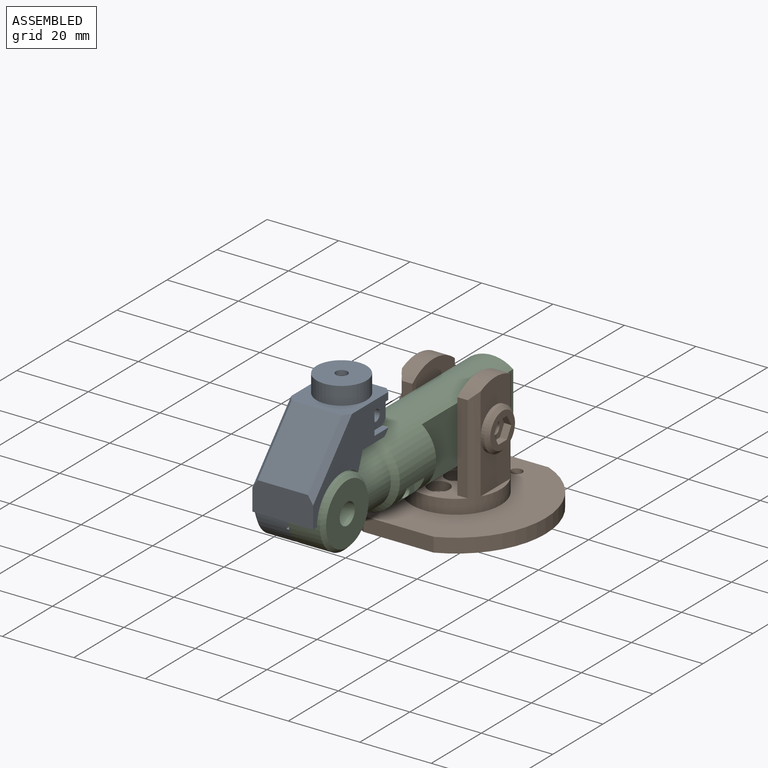
[diagram: assembled view]
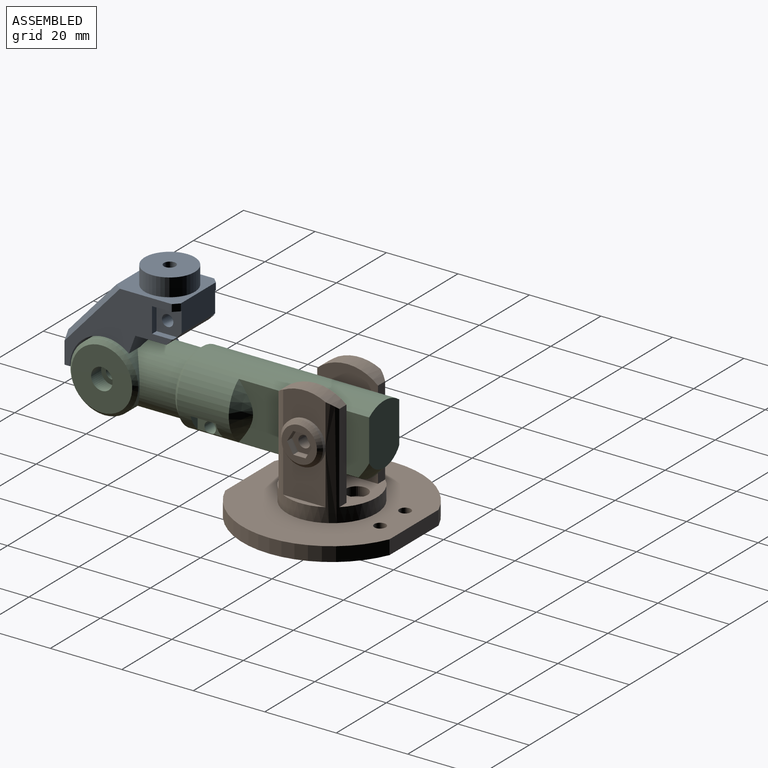
[diagram: assembled view, second angle]
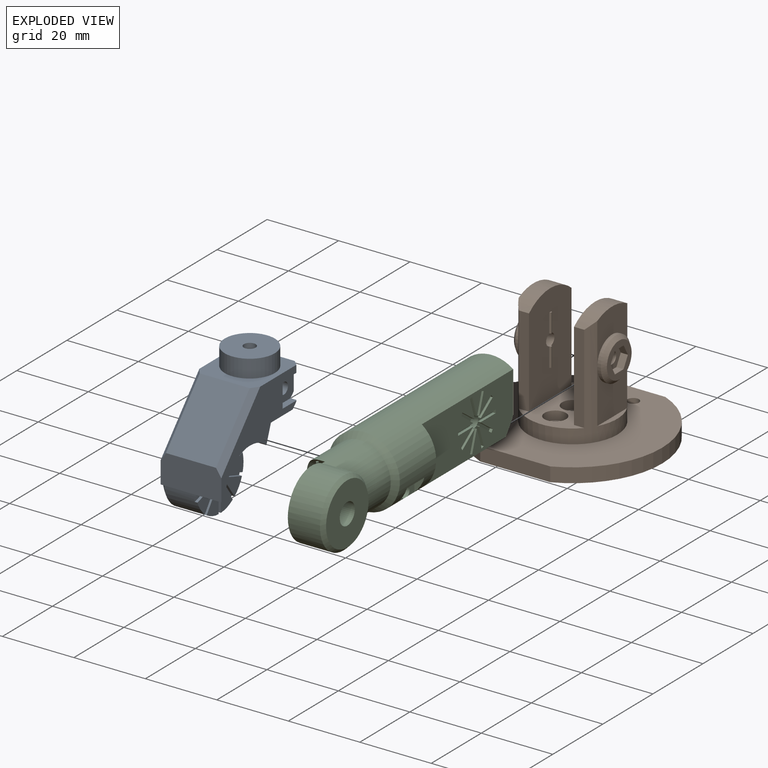
[diagram: exploded view]
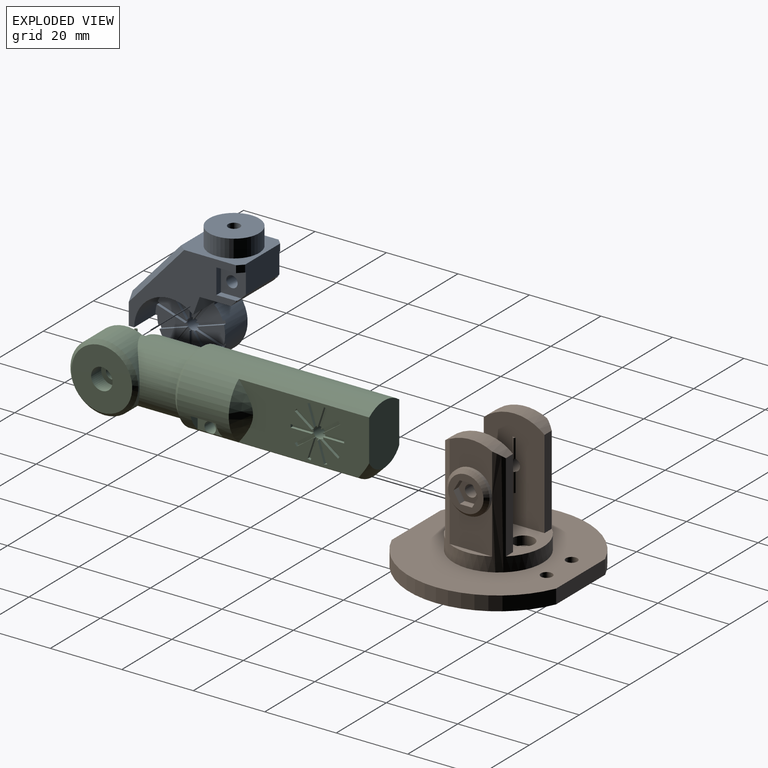
[diagram: exploded view, second angle]
ASSEMBLY  parts=3 mates=2
PART A: 96 faces, bbox 18.5x31.5x37.8 mm
  f0: plane 30x23.33mm, normal (1,0,0), area 241.2mm2, adj f3,f5,f22,f23,f24,f25,f26,f33
  f1: plane 30x23.33mm, normal (-1,0,0), area 252.4mm2, adj f3,f4,f7,f22,f24,f25,f26,f32
  f2: plane 14x7.73mm, normal (0,1,0), area 104.8mm2, adj f3,f26,f82,f83,f88,f90,f93,f94
  f3: plane 17x3mm, normal (0,0.71,-0.71), area 65.6mm2, adj f0,f1,f2,f4,f5,f25,f88,f89
  f4: plane 0.23x0.23mm, normal (-0.71,0.71,0), area 0mm2, adj f1,f3,f92
  f5: plane 0.23x0.23mm, normal (0.71,0.71,0), area 0mm2, adj f0,f3,f89
  f6: cylinder r=1.65mm len=6mm, axis (1,0,0), area 54.9mm2, adj f8,f10,f12,f13,f14,f15,f16,f17
  f7: cylinder r=9.5mm len=19mm, axis (1,0,0), area 345.2mm2, adj f1,f12,f13,f14,f15,f16,f17,f31
  f8: plane 8.44x5.06mm, normal (1,0,0), area 23mm2, adj f6,f23,f59,f63
  f9: plane 0.73x0.53mm, normal (1,0,0), area 0mm2, adj f23,f64
  f10: plane 8.06x6.9mm, normal (1,0,0), area 23mm2, adj f6,f23,f62,f67
  f11: plane 0.86x0.28mm, normal (1,0,0), area 0mm2, adj f23,f68
  f12: plane 8.35x5.16mm, normal (1,0,0), area 21.7mm2, adj f6,f7,f23,f33,f66,f71
  f13: plane 7.59x6.49mm, normal (1,0,0), area 20.4mm2, adj f6,f7,f70,f72
  f14: plane 7.94x4.76mm, normal (1,0,0), area 20.4mm2, adj f6,f7,f42,f46
  f15: plane 7.59x6.49mm, normal (1,0,0), area 20.4mm2, adj f6,f7,f45,f49
  f16: plane 7.85x5.01mm, normal (1,0,0), area 20.4mm2, adj f6,f7,f48,f52
  f17: plane 7.59x6.9mm, normal (1,0,0), area 20.7mm2, adj f6,f7,f23,f32,f51,f55
  f18: plane 0.73x0.53mm, normal (1,0,0), area 0mm2, adj f23,f56
  f19: plane 8.44x5.06mm, normal (1,0,0), area 23mm2, adj f6,f23,f54,f58
  f20: plane 0.9x0.01mm, normal (1,0,0), area 0mm2, adj f23,f60
  f21: cylinder r=1.65mm len=12.73mm, axis (0,0,1), area 132mm2, adj f29,f34
  f22: plane 17x8.33mm, normal (0,-1,0), area 138.3mm2, adj f0,f1,f27,f33,f84,f85
  f23: cylinder r=10mm len=16.5mm, axis (-1,0,0), area 193.7mm2, adj f0,f8,f9,f10,f11,f12,f17,f18
  f24: plane 17x5mm, normal (0,0.94,-0.34), area 90.5mm2, adj f0,f1,f23,f25,f32
  f25: plane 17x8.68mm, normal (0,0,-1), area 116.4mm2, adj f0,f1,f3,f24,f35,f36,f37,f38
  f26: plane 18x17mm, normal (0,0,1), area 146.8mm2, adj f0,f1,f2,f27,f28,f82,f83,f84
  f27: plane 14.99x14mm, normal (0,-0.74,0.67), area 282.5mm2, adj f22,f26,f84,f85
  f28: cylinder r=7mm len=14mm, axis (0,0,-1), area 219.9mm2, adj f26,f29
  f29: plane 14x14mm, normal (0,0,1), area 145.4mm2, adj f21,f28
  f30: plane 17x17mm, normal (-1,0,0), area 195.8mm2, adj f76,f77,f78,f79,f80,f81,f86
  f31: plane 7.94x4.76mm, normal (1,0,0), area 20.4mm2, adj f6,f7,f43,f73
  f32: plane 8.5x0.67mm, normal (0,1,0), area 5.7mm2, adj f1,f7,f17,f24
  f33: plane 17x2mm, normal (0,0,-1), area 29.8mm2, adj f0,f1,f7,f12,f22,f23
  f34: plane 6.93x6mm, normal (0,0,-1), area 22.6mm2, adj f21,f35,f36,f37,f38,f39,f40
  f35: plane 3x3mm, normal (-0.87,0.5,0), area 10.4mm2, adj f25,f34,f36,f40
  f36: plane 3.46x3mm, normal (0,1,0), area 10.4mm2, adj f25,f34,f35,f37
  f37: plane 3x3mm, normal (0.87,0.5,0), area 10.4mm2, adj f25,f34,f36,f38
  f38: plane 3x3mm, normal (0.87,-0.5,0), area 10.4mm2, adj f25,f34,f37,f39
  f39: plane 3.46x3mm, normal (0,-1,0), area 10.4mm2, adj f25,f34,f38,f40
  f40: plane 3x3mm, normal (-0.87,-0.5,0), area 10.4mm2, adj f25,f34,f35,f39
  f41: plane 7.91x0.9mm, normal (1,0,0), area 7.1mm2, adj f6,f7,f42,f43
  f42: plane 7.9x0.8mm, normal (0,-1,0), area 6.3mm2, adj f6,f7,f14,f41
  f43: plane 7.9x0.8mm, normal (0,1,0), area 6.3mm2, adj f6,f7,f31,f41
  f44: plane 6.92x5.37mm, normal (1,0,0), area 7.1mm2, adj f6,f7,f45,f46
  f45: plane 6.39x4.64mm, normal (0,-0.81,-0.59), area 6.3mm2, adj f6,f7,f15,f44
  f46: plane 6.39x4.64mm, normal (0,0.81,0.59), area 6.3mm2, adj f6,f7,f14,f44
  f47: plane 7.79x3.3mm, normal (1,0,0), area 7.1mm2, adj f6,f7,f48,f49
  f48: plane 7.52x2.44mm, normal (0,-0.31,-0.95), area 6.3mm2, adj f6,f7,f16,f47
  f49: plane 7.52x2.44mm, normal (0,0.31,0.95), area 6.3mm2, adj f6,f7,f15,f47
  f50: plane 7.79x3.3mm, normal (1,0,0), area 7.1mm2, adj f6,f7,f51,f52
  f51: plane 7.52x2.44mm, normal (0,0.31,-0.95), area 6.3mm2, adj f6,f7,f17,f50
  f52: plane 7.52x2.44mm, normal (0,-0.31,0.95), area 6.3mm2, adj f6,f7,f16,f50
  f53: plane 7.33x5.67mm, normal (1,0,0), area 7.5mm2, adj f6,f54,f55,f56
  f54: plane 6.8x4.94mm, normal (0,0.81,-0.59), area 6.7mm2, adj f6,f19,f53,f56
  f55: plane 6.8x4.94mm, normal (0,-0.81,0.59), area 6.7mm2, adj f6,f17,f53,f56
  f56: plane 0.8x0.73mm, normal (0,-0.59,-0.81), area 0.7mm2, adj f18,f53,f54,f55
  f57: plane 8.4x0.9mm, normal (1,0,0), area 7.5mm2, adj f6,f58,f59,f60
  f58: plane 8.4x0.8mm, normal (0,-1,0), area 6.7mm2, adj f6,f19,f57,f60
  f59: plane 8.4x0.8mm, normal (0,1,0), area 6.7mm2, adj f6,f8,f57,f60
  f60: plane 0.9x0.8mm, normal (0,0,-1), area 0.7mm2, adj f20,f57,f58,f59
  f61: plane 7.33x5.67mm, normal (1,0,0), area 7.5mm2, adj f6,f62,f63,f64
  f62: plane 6.8x4.94mm, normal (0,0.81,0.59), area 6.7mm2, adj f6,f10,f61,f64
  f63: plane 6.8x4.94mm, normal (0,-0.81,-0.59), area 6.7mm2, adj f6,f8,f61,f64
  f64: plane 0.8x0.73mm, normal (0,0.59,-0.81), area 0.7mm2, adj f9,f61,f62,f63
  f65: plane 8.27x3.45mm, normal (1,0,0), area 7.5mm2, adj f6,f66,f67,f68
  f66: plane 7.99x2.6mm, normal (0,0.31,0.95), area 6.7mm2, adj f6,f12,f65,f68
  f67: plane 7.99x2.6mm, normal (0,-0.31,-0.95), area 6.7mm2, adj f6,f10,f65,f68
  f68: plane 0.86x0.8mm, normal (0,0.95,-0.31), area 0.7mm2, adj f11,f65,f66,f67
  f69: plane 7.79x3.3mm, normal (1,0,0), area 7.1mm2, adj f6,f7,f70,f71
  f70: plane 7.52x2.44mm, normal (0,-0.31,0.95), area 6.3mm2, adj f6,f7,f13,f69
  f71: plane 7.52x2.44mm, normal (0,0.31,-0.95), area 6.3mm2, adj f6,f7,f12,f69
  f72: plane 6.39x4.64mm, normal (0,0.81,-0.59), area 6.3mm2, adj f6,f7,f13,f74
  f73: plane 6.39x4.64mm, normal (0,-0.81,0.59), area 6.3mm2, adj f6,f7,f31,f74
  f74: plane 6.92x5.37mm, normal (1,0,0), area 7.1mm2, adj f6,f7,f72,f73
  f75: plane 6.93x6mm, normal (-1,0,0), area 22.6mm2, adj f6,f76,f77,f78,f79,f80,f81
  f76: plane 4x3mm, normal (0,-0.5,-0.87), area 13.9mm2, adj f30,f75,f77,f81
  f77: plane 4x3.46mm, normal (0,-1,0), area 13.9mm2, adj f30,f75,f76,f78
  f78: plane 4x3mm, normal (0,-0.5,0.87), area 13.9mm2, adj f30,f75,f77,f79
  f79: plane 4x3mm, normal (0,0.5,0.87), area 13.9mm2, adj f30,f75,f78,f80
  f80: plane 4x3.46mm, normal (0,1,0), area 13.9mm2, adj f30,f75,f79,f81
  f81: plane 4x3mm, normal (0,0.5,-0.87), area 13.9mm2, adj f30,f75,f76,f80
  f82: plane 2x1.5mm, normal (-0.71,0.71,0), area 4.2mm2, adj f1,f2,f26,f93
  f83: plane 2x1.5mm, normal (0.71,0.71,0), area 4.2mm2, adj f0,f2,f26,f90
  f84: plane 17.24x15.52mm, normal (-0.71,-0.53,0.47), area 46mm2, adj f1,f22,f26,f27
  f85: plane 17.24x15.52mm, normal (0.71,-0.53,0.47), area 46mm2, adj f0,f22,f26,f27
  f86: cone r=9.5mm half-angle=45deg, axis (1,0,0), area 80mm2, adj f7,f30
  f87: plane 7x1.8mm, normal (0,1,0), area 12.6mm2, adj f0,f88,f89,f90
  f88: plane 7x7mm, normal (1,0,0), area 40.1mm2, adj f2,f3,f87,f89,f90,f95
  f89: plane 5.73x1.8mm, normal (0,0,1), area 10.3mm2, adj f0,f3,f5,f87,f88
  f90: plane 7x1.8mm, normal (0,0,-1), area 11.5mm2, adj f0,f2,f83,f87,f88
  f91: plane 7x1.8mm, normal (0,1,0), area 12.6mm2, adj f1,f92,f93,f94
  f92: plane 5.73x1.8mm, normal (0,0,1), area 10.3mm2, adj f1,f3,f4,f91,f94
  f93: plane 7x1.8mm, normal (0,0,-1), area 11.5mm2, adj f1,f2,f82,f91,f94
  f94: plane 7x7mm, normal (-1,0,0), area 40.1mm2, adj f2,f3,f91,f92,f93,f95
  f95: cylinder r=1.6mm len=13.4mm, axis (-1,0,0), area 134.7mm2, adj f88,f94
PART B: 82 faces, bbox 50x46x36 mm
  f0: plane 15x11.87mm, normal (-1,0,0), area 122.7mm2, adj f8,f26,f78
  f1: plane 6x6mm, normal (-1,0,0), area 19.7mm2, adj f20,f77
  f2: plane 13x11.87mm, normal (1,0,0), area 93.4mm2, adj f8,f22,f74
  f3: plane 6.93x6mm, normal (1,0,0), area 22.6mm2, adj f24,f69,f70,f71,f72,f73,f75
  f4: plane 50x46mm, normal (0,0,-1), area 1515.2mm2, adj f27,f51,f52,f53,f54,f56,f57,f58
  f5: cylinder r=1.6mm len=3.2mm, axis (0,0,1), area 25.1mm2, adj f7,f68
  f6: cylinder r=1.6mm len=3.2mm, axis (0,0,1), area 25.1mm2, adj f7,f55
  f7: plane 50x46mm, normal (0,0,1), area 1403.8mm2, adj f5,f6,f8,f51,f52,f53,f54
  f8: cylinder r=12.5mm len=30.57mm, axis (0,0,1), area 639.7mm2, adj f0,f2,f7,f14,f15,f16,f17,f18
  f9: plane 28x17mm, normal (1,0,0), area 442mm2, adj f14,f18,f19,f20,f21,f39,f40,f41
  f10: plane 28x17mm, normal (-1,0,0), area 442.4mm2, adj f15,f21,f22,f23,f24,f35,f36,f37
  f11: cylinder r=1.6mm len=3.2mm, axis (0,0,-1), area 30.2mm2, adj f28,f33
  f12: cylinder r=1.6mm len=3.2mm, axis (0,0,-1), area 30.2mm2, adj f28,f31
  f13: cylinder r=1.6mm len=3.2mm, axis (0,0,-1), area 30.2mm2, adj f28,f29
  f14: plane 24.84x2.87mm, normal (0,-1,0), area 71.2mm2, adj f8,f9,f18,f21
  f15: plane 24.84x2.87mm, normal (0,1,0), area 71.2mm2, adj f8,f10,f21,f22
  f16: plane 13x11.87mm, normal (-1,0,0), area 93.4mm2, adj f8,f18,f78
  f17: plane 15x11.87mm, normal (1,0,0), area 122.7mm2, adj f8,f25,f74
  f18: cylinder r=13mm len=17mm, axis (-1,0,0), area 81.8mm2, adj f8,f9,f14,f16,f19
  f19: plane 24.84x2.87mm, normal (0,1,0), area 71.2mm2, adj f8,f9,f18,f21
  f20: cylinder r=1.65mm len=4.7mm, axis (1,0,0), area 48.7mm2, adj f1,f9
  f21: plane 25x18.33mm, normal (0,0,1), area 230.8mm2, adj f8,f9,f10,f14,f15,f19,f23,f30
  f22: cylinder r=13mm len=17mm, axis (-1,0,0), area 81.8mm2, adj f2,f8,f10,f15,f23
  f23: plane 24.84x2.87mm, normal (0,-1,0), area 71.2mm2, adj f8,f10,f21,f22
  f24: cylinder r=1.65mm len=4.7mm, axis (1,0,0), area 48.7mm2, adj f3,f10
  f25: plane 11.87x1.5mm, normal (0,0,1), area 12mm2, adj f8,f17
  f26: plane 11.87x1.5mm, normal (0,0,1), area 12mm2, adj f0,f8
  f27: cylinder r=10.3mm len=20.6mm, axis (0,0,-1), area 161.8mm2, adj f4,f28
  f28: plane 20.6x20.6mm, normal (0,0,-1), area 309.2mm2, adj f11,f12,f13,f27
  f29: plane 6x6mm, normal (0,0,1), area 20.2mm2, adj f13,f30
  f30: cylinder r=3mm len=6mm, axis (0,0,1), area 47.1mm2, adj f21,f29
  f31: plane 6x6mm, normal (0,0,1), area 20.2mm2, adj f12,f32
  f32: cylinder r=3mm len=6mm, axis (0,0,1), area 47.1mm2, adj f21,f31
  f33: plane 6x6mm, normal (0,0,1), area 20.2mm2, adj f11,f34
  f34: cylinder r=3mm len=6mm, axis (0,0,1), area 47.1mm2, adj f21,f33
  f35: plane 0.8x0.39mm, normal (0,0,-1), area 0.2mm2, adj f10,f49,f50
  f36: plane 0.8x0.39mm, normal (0,0,1), area 0.2mm2, adj f10,f49,f50
  f37: plane 0.8x0.39mm, normal (0,0,1), area 0.2mm2, adj f10,f47,f48
  f38: plane 0.8x0.39mm, normal (0,0,-1), area 0.2mm2, adj f10,f47,f48
  f39: plane 0.8x0.39mm, normal (0,0,-1), area 0.2mm2, adj f9,f45,f46
  f40: plane 0.8x0.39mm, normal (0,0,1), area 0.2mm2, adj f9,f45,f46
  f41: plane 0.8x0.39mm, normal (0,0,-1), area 0.2mm2, adj f9,f43,f44
  f42: plane 0.8x0.39mm, normal (0,0,1), area 0.2mm2, adj f9,f43,f44
  f43: cylinder r=0.5mm len=5.34mm, axis (0,0,1), area 3.2mm2, adj f9,f41,f42,f44
  f44: cylinder r=0.5mm len=5.34mm, axis (0,0,1), area 3.2mm2, adj f9,f41,f42,f43
  f45: cylinder r=0.5mm len=5.34mm, axis (0,0,-1), area 3.2mm2, adj f9,f39,f40,f46
  f46: cylinder r=0.5mm len=5.34mm, axis (0,0,-1), area 3.2mm2, adj f9,f39,f40,f45
  f47: cylinder r=0.5mm len=5.09mm, axis (0,0,-1), area 3mm2, adj f10,f37,f38,f48
  f48: cylinder r=0.5mm len=5.09mm, axis (0,0,-1), area 3mm2, adj f10,f37,f38,f47
  f49: cylinder r=0.5mm len=5.09mm, axis (0,0,1), area 3mm2, adj f10,f35,f36,f50
  f50: cylinder r=0.5mm len=5.09mm, axis (0,0,1), area 3mm2, adj f10,f35,f36,f49
  f51: plane 19.6x4mm, normal (0,-1,0), area 78.4mm2, adj f4,f7,f52,f54
  f52: cylinder r=25mm len=46mm, axis (0,0,-1), area 233.6mm2, adj f4,f7,f51,f53
  f53: plane 19.6x4mm, normal (0,1,0), area 78.4mm2, adj f4,f7,f52,f54
  f54: cylinder r=25mm len=46mm, axis (0,0,-1), area 233.6mm2, adj f4,f7,f51,f53
  f55: plane 6.93x6mm, normal (0,0,-1), area 23.1mm2, adj f6,f56,f57,f58,f59,f60,f61
  f56: plane 3x1.73mm, normal (-0.87,-0.5,0), area 5.2mm2, adj f4,f55,f57,f61
  f57: plane 3x1.73mm, normal (-0.87,0.5,0), area 5.2mm2, adj f4,f55,f56,f58
  f58: plane 3.46x1.5mm, normal (0,1,0), area 5.2mm2, adj f4,f55,f57,f59
  f59: plane 3x1.73mm, normal (0.87,0.5,0), area 5.2mm2, adj f4,f55,f58,f60
  f60: plane 3x1.73mm, normal (0.87,-0.5,0), area 5.2mm2, adj f4,f55,f59,f61
  f61: plane 3.46x1.5mm, normal (0,-1,0), area 5.2mm2, adj f4,f55,f56,f60
  f62: plane 3.46x1.5mm, normal (0,1,0), area 5.2mm2, adj f4,f63,f67,f68
  f63: plane 3x1.73mm, normal (0.87,0.5,0), area 5.2mm2, adj f4,f62,f64,f68
  f64: plane 3x1.73mm, normal (0.87,-0.5,0), area 5.2mm2, adj f4,f63,f65,f68
  f65: plane 3.46x1.5mm, normal (0,-1,0), area 5.2mm2, adj f4,f64,f66,f68
  f66: plane 3x1.73mm, normal (-0.87,-0.5,0), area 5.2mm2, adj f4,f65,f67,f68
  f67: plane 3x1.73mm, normal (-0.87,0.5,0), area 5.2mm2, adj f4,f62,f66,f68
  f68: plane 6.93x6mm, normal (0,0,-1), area 23.1mm2, adj f5,f62,f63,f64,f65,f66,f67
  f69: plane 3x2mm, normal (0,0.87,-0.5), area 6.9mm2, adj f3,f70,f75,f76
  f70: plane 3.46x2mm, normal (0,0,-1), area 6.9mm2, adj f3,f69,f71,f76
  f71: plane 3x2mm, normal (0,-0.87,-0.5), area 6.9mm2, adj f3,f70,f72,f76
  f72: plane 3x2mm, normal (0,-0.87,0.5), area 6.9mm2, adj f3,f71,f73,f76
  f73: plane 3.46x2mm, normal (0,0,1), area 6.9mm2, adj f3,f72,f75,f76
  f74: cylinder r=5.94mm len=11.87mm, axis (-1,0,0), area 37.3mm2, adj f2,f17,f81
  f75: plane 3x2mm, normal (0,0.87,0.5), area 6.9mm2, adj f3,f69,f73,f76
  f76: plane 9.87x9.87mm, normal (1,0,0), area 45.4mm2, adj f69,f70,f71,f72,f73,f75,f81
  f77: cylinder r=3mm len=6mm, axis (1,0,0), area 37.7mm2, adj f1,f79
  f78: cylinder r=5.94mm len=11.87mm, axis (1,0,0), area 37.3mm2, adj f0,f16,f80
  f79: plane 9.87x9.87mm, normal (-1,0,0), area 48.3mm2, adj f77,f80
  f80: cone r=4.94mm half-angle=45deg, axis (1,0,0), area 48.3mm2, adj f78,f79
  f81: cone r=4.94mm half-angle=45deg, axis (-1,0,0), area 48.3mm2, adj f74,f76
PART C: 117 faces, bbox 20x81.5x20 mm
  f0: plane 36.5x16mm, normal (1,0,0), area 476.1mm2, adj f2,f4,f5,f24,f65,f66,f67,f69
  f1: plane 36.5x16mm, normal (-1,0,0), area 476.1mm2, adj f2,f4,f5,f24,f25,f26,f27,f29
  f2: cylinder r=1.65mm len=12mm, axis (-1,0,0), area 109.8mm2, adj f0,f1,f25,f27,f28,f29,f31,f32
  f3: cylinder r=1.65mm len=6mm, axis (1,0,0), area 62.2mm2, adj f6,f22
  f4: cylinder r=10mm len=51mm, axis (0,1,0), area 1736.5mm2, adj f0,f1,f5,f10,f24,f106,f107,f108
  f5: plane 17x12mm, normal (0,1,0), area 184.4mm2, adj f0,f1,f4,f24
  f6: plane 19.5x19mm, normal (-1,0,0), area 273.3mm2, adj f3,f7,f8,f11,f13,f17,f18,f19
  f7: cylinder r=8.5mm len=17mm, axis (0,1,0), area 642.4mm2, adj f6,f8,f10,f11
  f8: cylinder r=9.5mm len=19mm, axis (-1,0,0), area 405.9mm2, adj f6,f7,f12,f15,f105
  f9: plane 17x17mm, normal (1,0,0), area 198.7mm2, adj f23,f105
  f10: cone r=8mm half-angle=45deg, axis (0,1,0), area 123.3mm2, adj f4,f7
  f11: cylinder r=10mm len=17mm, axis (1,0,0), area 128.5mm2, adj f6,f7
  f12: plane 0.8x0.45mm, normal (1,0,0), area 0.3mm2, adj f8,f14,f20,f21
  f13: plane 0.8x0.49mm, normal (0,0,-1), area 0.3mm2, adj f6,f20,f21
  f14: plane 0.8x0.49mm, normal (0,0,1), area 0.3mm2, adj f12,f20,f21
  f15: plane 0.8x0.45mm, normal (1,0,0), area 0.3mm2, adj f8,f16,f18,f19
  f16: plane 0.8x0.49mm, normal (0,0,-1), area 0.3mm2, adj f15,f18,f19
  f17: plane 0.8x0.49mm, normal (0,0,1), area 0.3mm2, adj f6,f18,f19
  f18: cylinder r=0.5mm len=7.84mm, axis (0,0,1), area 5.4mm2, adj f6,f15,f16,f17,f19
  f19: cylinder r=0.5mm len=7.84mm, axis (0,0,-1), area 5.4mm2, adj f6,f15,f16,f17,f18
  f20: cylinder r=0.5mm len=7.84mm, axis (0,0,-1), area 5.4mm2, adj f6,f12,f13,f14,f21
  f21: cylinder r=0.5mm len=7.84mm, axis (0,0,1), area 5.4mm2, adj f6,f12,f13,f14,f20
  f22: plane 6x6mm, normal (1,0,0), area 19.7mm2, adj f3,f23
  f23: cylinder r=3mm len=6mm, axis (1,0,0), area 75.4mm2, adj f9,f22
  f24: cone r=10mm half-angle=45deg, axis (0,-1,0), area 56.9mm2, adj f0,f1,f4,f5
  f25: plane 5.9x0.8mm, normal (0,0,-1), area 4.7mm2, adj f1,f2,f26,f28
  f26: plane 0.9x0.8mm, normal (0,-1,0), area 0.7mm2, adj f1,f25,f27,f28
  f27: plane 5.9x0.8mm, normal (0,0,1), area 4.7mm2, adj f1,f2,f26,f28
  f28: plane 5.9x0.9mm, normal (-1,0,0), area 5.3mm2, adj f2,f25,f26,f27
  f29: plane 4.77x3.47mm, normal (0,0.59,-0.81), area 4.7mm2, adj f1,f2,f30,f32
  f30: plane 0.8x0.73mm, normal (0,-0.81,-0.59), area 0.7mm2, adj f1,f29,f31,f32
  f31: plane 4.77x3.47mm, normal (0,-0.59,0.81), area 4.7mm2, adj f1,f2,f30,f32
  f32: plane 5.3x4.2mm, normal (-1,0,0), area 5.3mm2, adj f2,f29,f30,f31
  f33: plane 5.9x0.8mm, normal (0,0,1), area 4.7mm2, adj f1,f2,f34,f36
  f34: plane 0.9x0.8mm, normal (0,1,0), area 0.7mm2, adj f1,f33,f35,f36
  f35: plane 5.9x0.8mm, normal (0,0,-1), area 4.7mm2, adj f1,f2,f34,f36
  f36: plane 5.9x0.9mm, normal (-1,0,0), area 5.3mm2, adj f2,f33,f34,f35
  f37: plane 4.77x3.47mm, normal (0,0.59,0.81), area 4.7mm2, adj f1,f2,f38,f40
  f38: plane 0.8x0.73mm, normal (0,0.81,-0.59), area 0.7mm2, adj f1,f37,f39,f40
  f39: plane 4.77x3.47mm, normal (0,-0.59,-0.81), area 4.7mm2, adj f1,f2,f38,f40
  f40: plane 5.3x4.2mm, normal (-1,0,0), area 5.3mm2, adj f2,f37,f38,f39
  f41: plane 5.61x1.82mm, normal (0,0.95,0.31), area 4.7mm2, adj f1,f2,f42,f44
  f42: plane 0.86x0.8mm, normal (0,0.31,-0.95), area 0.7mm2, adj f1,f41,f43,f44
  f43: plane 5.61x1.82mm, normal (0,-0.95,-0.31), area 4.7mm2, adj f1,f2,f42,f44
  f44: plane 5.89x2.68mm, normal (-1,0,0), area 5.3mm2, adj f2,f41,f42,f43
  f45: plane 5.61x1.82mm, normal (0,0.95,-0.31), area 4.7mm2, adj f1,f2,f46,f48
  f46: plane 0.86x0.8mm, normal (0,-0.31,-0.95), area 0.7mm2, adj f1,f45,f47,f48
  f47: plane 5.61x1.82mm, normal (0,-0.95,0.31), area 4.7mm2, adj f1,f2,f46,f48
  f48: plane 5.89x2.68mm, normal (-1,0,0), area 5.3mm2, adj f2,f45,f46,f47
  f49: plane 5.61x1.82mm, normal (0,-0.95,0.31), area 4.7mm2, adj f1,f2,f50,f52
  f50: plane 0.86x0.8mm, normal (0,0.31,0.95), area 0.7mm2, adj f1,f49,f51,f52
  f51: plane 5.61x1.82mm, normal (0,0.95,-0.31), area 4.7mm2, adj f1,f2,f50,f52
  f52: plane 5.89x2.68mm, normal (-1,0,0), area 5.3mm2, adj f2,f49,f50,f51
  f53: plane 4.77x3.47mm, normal (0,-0.59,0.81), area 4.7mm2, adj f1,f2,f54,f56
  f54: plane 0.8x0.73mm, normal (0,0.81,0.59), area 0.7mm2, adj f1,f53,f55,f56
  f55: plane 4.77x3.47mm, normal (0,0.59,-0.81), area 4.7mm2, adj f1,f2,f54,f56
  f56: plane 5.3x4.2mm, normal (-1,0,0), area 5.3mm2, adj f2,f53,f54,f55
  f57: plane 4.77x3.47mm, normal (0,-0.59,-0.81), area 4.7mm2, adj f1,f2,f58,f60
  f58: plane 0.8x0.73mm, normal (0,-0.81,0.59), area 0.7mm2, adj f1,f57,f59,f60
  f59: plane 4.77x3.47mm, normal (0,0.59,0.81), area 4.7mm2, adj f1,f2,f58,f60
  f60: plane 5.3x4.2mm, normal (-1,0,0), area 5.3mm2, adj f2,f57,f58,f59
  f61: plane 5.61x1.82mm, normal (0,-0.95,-0.31), area 4.7mm2, adj f1,f2,f62,f64
  f62: plane 0.86x0.8mm, normal (0,-0.31,0.95), area 0.7mm2, adj f1,f61,f63,f64
  f63: plane 5.61x1.82mm, normal (0,0.95,0.31), area 4.7mm2, adj f1,f2,f62,f64
  f64: plane 5.89x2.68mm, normal (-1,0,0), area 5.3mm2, adj f2,f61,f62,f63
  f65: plane 5.9x0.8mm, normal (0,0,1), area 4.7mm2, adj f0,f2,f66,f68
  f66: plane 0.9x0.8mm, normal (0,-1,0), area 0.7mm2, adj f0,f65,f67,f68
  f67: plane 5.9x0.8mm, normal (0,0,-1), area 4.7mm2, adj f0,f2,f66,f68
  f68: plane 5.9x0.9mm, normal (1,0,0), area 5.3mm2, adj f2,f65,f66,f67
  f69: plane 4.77x3.47mm, normal (0,-0.59,-0.81), area 4.7mm2, adj f0,f2,f71,f72
  f70: plane 4.77x3.47mm, normal (0,0.59,0.81), area 4.7mm2, adj f0,f2,f71,f72
  f71: plane 0.8x0.73mm, normal (0,-0.81,0.59), area 0.7mm2, adj f0,f69,f70,f72
  f72: plane 5.3x4.2mm, normal (1,0,0), area 5.3mm2, adj f2,f69,f70,f71
  f73: plane 5.9x0.8mm, normal (0,0,1), area 4.7mm2, adj f0,f2,f75,f76
  f74: plane 5.9x0.8mm, normal (0,0,-1), area 4.7mm2, adj f0,f2,f75,f76
  f75: plane 0.9x0.8mm, normal (0,1,0), area 0.7mm2, adj f0,f73,f74,f76
  f76: plane 5.9x0.9mm, normal (1,0,0), area 5.3mm2, adj f2,f73,f74,f75
  f77: plane 4.77x3.47mm, normal (0,-0.59,0.81), area 4.7mm2, adj f0,f2,f79,f80
  f78: plane 4.77x3.47mm, normal (0,0.59,-0.81), area 4.7mm2, adj f0,f2,f79,f80
  f79: plane 0.8x0.73mm, normal (0,0.81,0.59), area 0.7mm2, adj f0,f77,f78,f80
  f80: plane 5.3x4.2mm, normal (1,0,0), area 5.3mm2, adj f2,f77,f78,f79
  f81: plane 5.61x1.82mm, normal (0,-0.95,0.31), area 4.7mm2, adj f0,f2,f83,f84
  f82: plane 5.61x1.82mm, normal (0,0.95,-0.31), area 4.7mm2, adj f0,f2,f83,f84
  f83: plane 0.86x0.8mm, normal (0,0.31,0.95), area 0.7mm2, adj f0,f81,f82,f84
  f84: plane 5.89x2.68mm, normal (1,0,0), area 5.3mm2, adj f2,f81,f82,f83
  f85: plane 5.61x1.82mm, normal (0,-0.95,-0.31), area 4.7mm2, adj f0,f2,f87,f88
  f86: plane 5.61x1.82mm, normal (0,0.95,0.31), area 4.7mm2, adj f0,f2,f87,f88
  f87: plane 0.86x0.8mm, normal (0,-0.31,0.95), area 0.7mm2, adj f0,f85,f86,f88
  f88: plane 5.89x2.68mm, normal (1,0,0), area 5.3mm2, adj f2,f85,f86,f87
  f89: plane 5.61x1.82mm, normal (0,0.95,0.31), area 4.7mm2, adj f0,f2,f91,f92
  f90: plane 5.61x1.82mm, normal (0,-0.95,-0.31), area 4.7mm2, adj f0,f2,f91,f92
  f91: plane 0.86x0.8mm, normal (0,0.31,-0.95), area 0.7mm2, adj f0,f89,f90,f92
  f92: plane 5.89x2.68mm, normal (1,0,0), area 5.3mm2, adj f2,f89,f90,f91
  f93: plane 4.77x3.47mm, normal (0,0.59,0.81), area 4.7mm2, adj f0,f2,f95,f96
  f94: plane 4.77x3.47mm, normal (0,-0.59,-0.81), area 4.7mm2, adj f0,f2,f95,f96
  f95: plane 0.8x0.73mm, normal (0,0.81,-0.59), area 0.7mm2, adj f0,f93,f94,f96
  f96: plane 5.3x4.2mm, normal (1,0,0), area 5.3mm2, adj f2,f93,f94,f95
  f97: plane 4.77x3.47mm, normal (0,0.59,-0.81), area 4.7mm2, adj f0,f2,f99,f100
  f98: plane 4.77x3.47mm, normal (0,-0.59,0.81), area 4.7mm2, adj f0,f2,f99,f100
  f99: plane 0.8x0.73mm, normal (0,-0.81,-0.59), area 0.7mm2, adj f0,f97,f98,f100
  f100: plane 5.3x4.2mm, normal (1,0,0), area 5.3mm2, adj f2,f97,f98,f99
  f101: plane 5.61x1.82mm, normal (0,0.95,-0.31), area 4.7mm2, adj f0,f2,f103,f104
  f102: plane 5.61x1.82mm, normal (0,-0.95,0.31), area 4.7mm2, adj f0,f2,f103,f104
  f103: plane 0.86x0.8mm, normal (0,-0.31,-0.95), area 0.7mm2, adj f0,f101,f102,f104
  f104: plane 5.89x2.68mm, normal (1,0,0), area 5.3mm2, adj f2,f101,f102,f103
  f105: cone r=8.5mm half-angle=45deg, axis (-1,0,0), area 80mm2, adj f8,f9
  f106: cone r=10mm half-angle=45deg, axis (0,-1,0), area 63.3mm2, adj f1,f4
  f107: cone r=10mm half-angle=45deg, axis (0,-1,0), area 63.3mm2, adj f0,f4
  f108: plane 7x2.84mm, normal (0,0,-1), area 19.9mm2, adj f4,f109,f110,f111
  f109: plane 7x4.42mm, normal (-1,0,0), area 23.3mm2, adj f4,f108,f110,f111,f116
  f110: plane 4.42x2.84mm, normal (0,1,0), area 7.5mm2, adj f4,f108,f109
  f111: plane 4.42x2.84mm, normal (0,-1,0), area 7.5mm2, adj f4,f108,f109
  f112: plane 7x2.84mm, normal (0,0,-1), area 19.9mm2, adj f4,f113,f114,f115
  f113: plane 7x4.42mm, normal (1,0,0), area 23.3mm2, adj f4,f112,f114,f115,f116
  f114: plane 4.42x2.84mm, normal (0,1,0), area 7.5mm2, adj f4,f112,f113
  f115: plane 4.42x2.84mm, normal (0,-1,0), area 7.5mm2, adj f4,f112,f113
  f116: cylinder r=1.6mm len=13.4mm, axis (1,0,0), area 133.9mm2, adj f4,f109,f113
PLACE A t=(27.06,61.84,26.17)mm
PLACE B t=(27.26,61.84,26.17)mm
PLACE C t=(27.06,61.84,26.17)mm
MATE revolute A.f7 <-> C.f8  axis (1,0,0) through (27.06,16.34,26.17)mm
MATE revolute C.f2 <-> B.f20  axis (1,0,0) through (33.06,73.84,26.17)mm
